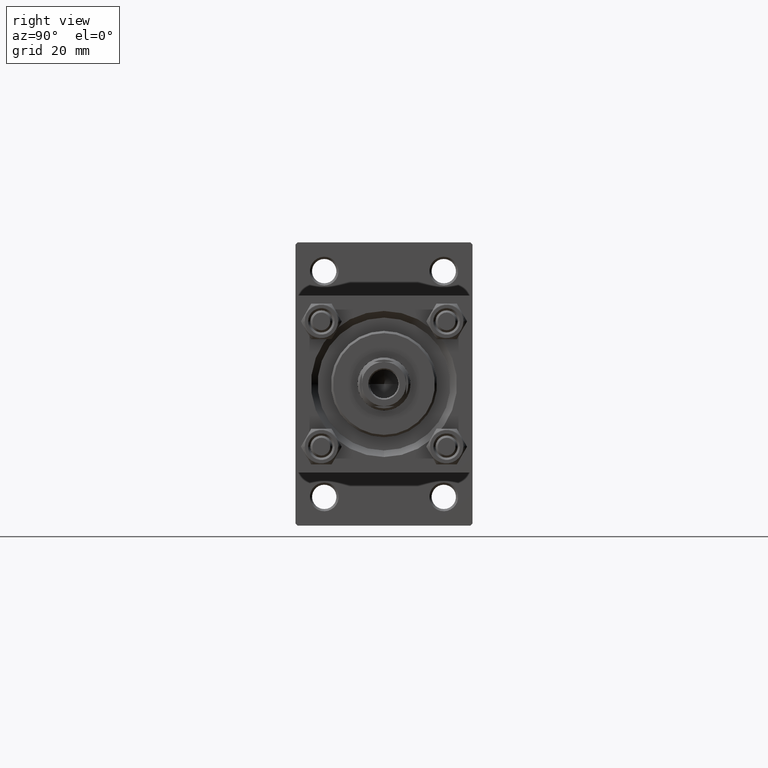
[diagram: clean part render]
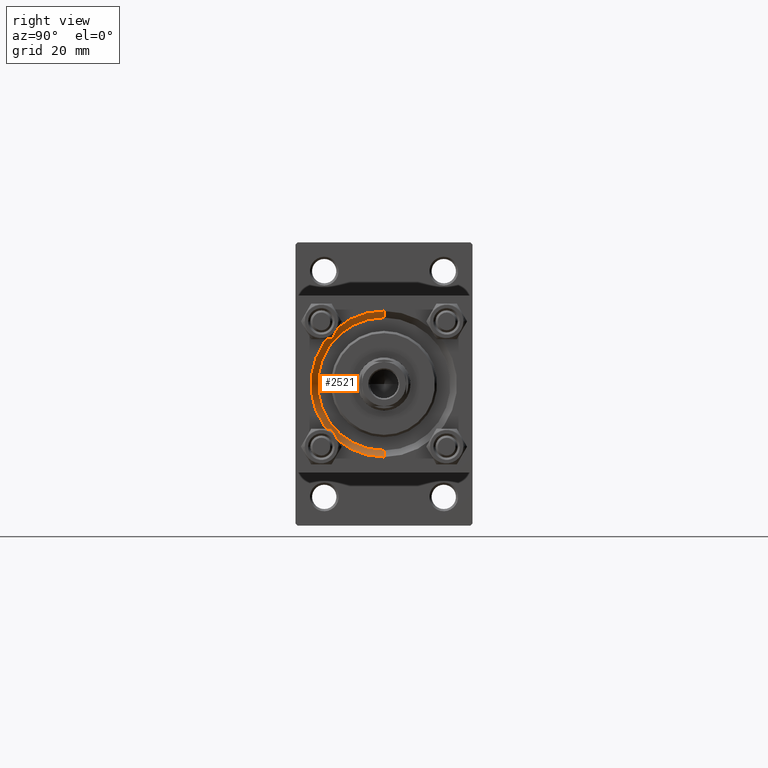
[diagram: same view with one face highlighted and labeled with its STEP entity id]
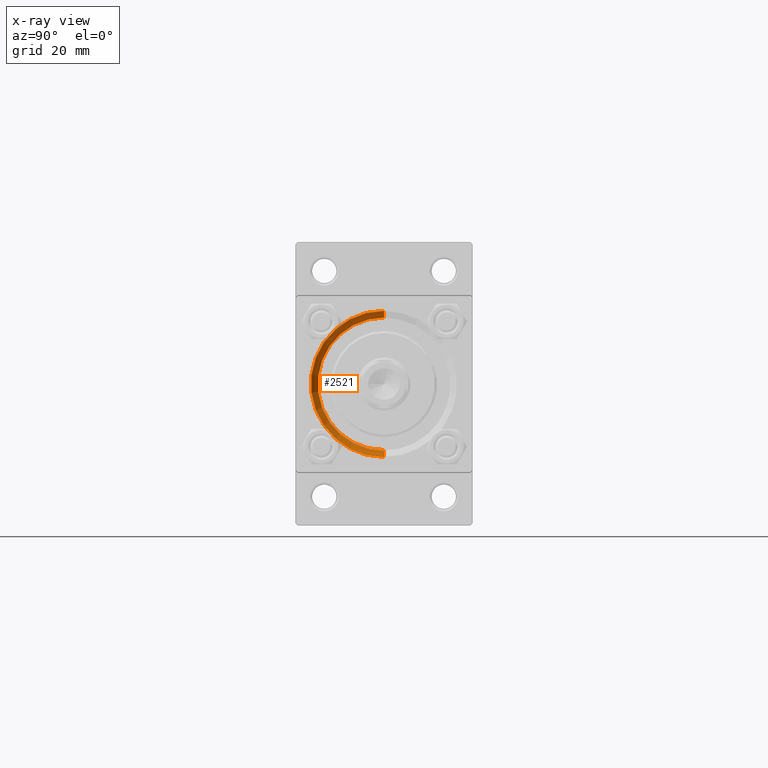
[diagram: x-ray of the same camera — body ghosted, the highlighted face saturated]
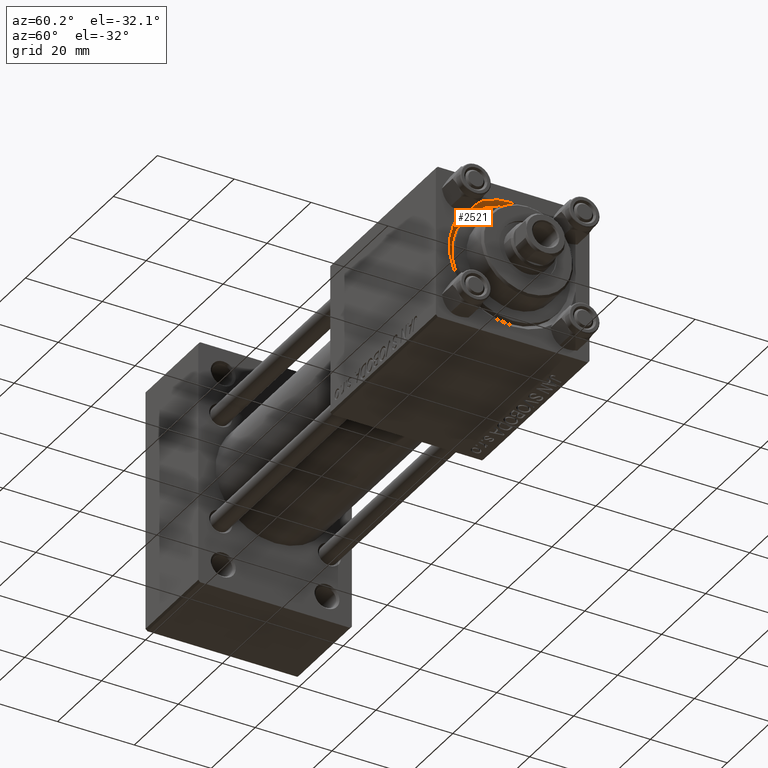
[diagram: same view with one face highlighted and labeled with its STEP entity id]
A machine part, right view. The second image highlights one B-rep face of the part: STEP entity #2521.
The next image is the same camera in x-ray: the body ghosted, the highlighted face saturated — about 0% of this face is hidden behind the body in this view.
A second angle (auxiliary view) of the same face is appended — the face is thin or edge-on in the first view.
In plain terms, the highlighted conical surface has half-angle 45 deg.
Its self-contained STEP definition (entity closure, byte-faithful):
#2207 = VECTOR ( 'NONE', #44223, 1000.000000000000114 ) ;
#2269 = AXIS2_PLACEMENT_3D ( 'NONE', #27806, #35134, #4822 ) ;
#2521 = ADVANCED_FACE ( 'NONE', ( #43252 ), #30303, .F. ) ;
#2537 = CARTESIAN_POINT ( 'NONE',  ( 130.4999999999999716, 0.000000000000000000, -15.00000000000000000 ) ) ;
#3182 = DIRECTION ( 'NONE',  ( 0.000000000000000000, 0.000000000000000000, 1.000000000000000000 ) ) ;
#3219 = EDGE_LOOP ( 'NONE', ( #8504, #42906, #34152, #34707 ) ) ;
#4115 = CIRCLE ( 'NONE', #34766, 15.00000000000000000 ) ;
#4822 = DIRECTION ( 'NONE',  ( 0.000000000000000000, 0.000000000000000000, 1.000000000000000000 ) ) ;
#5557 = CARTESIAN_POINT ( 'NONE',  ( 132.0000000000000000, 2.020667218593135861E-15, 16.50000000000002842 ) ) ;
#5905 = DIRECTION ( 'NONE',  ( 0.000000000000000000, 0.000000000000000000, -1.000000000000000000 ) ) ;
#7893 = EDGE_CURVE ( 'NONE', #23996, #41715, #43978, .T. ) ;
#8504 = ORIENTED_EDGE ( 'NONE', *, *, #19416, .F. ) ;
#9647 = VECTOR ( 'NONE', #29565, 1000.000000000000114 ) ;
#16594 = AXIS2_PLACEMENT_3D ( 'NONE', #28634, #17263, #5905 ) ;
#17263 = DIRECTION ( 'NONE',  ( 1.000000000000000000, 0.000000000000000000, 0.000000000000000000 ) ) ;
#19416 = EDGE_CURVE ( 'NONE', #23996, #42383, #4115, .T. ) ;
#21258 = LINE ( 'NONE', #2537, #9647 ) ;
#23996 = VERTEX_POINT ( 'NONE', #35991 ) ;
#24552 = CARTESIAN_POINT ( 'NONE',  ( 130.4999999999999716, 1.836970198721029589E-15, 15.00000000000000000 ) ) ;
#26175 = CARTESIAN_POINT ( 'NONE',  ( 130.4999999999999716, 0.000000000000000000, 0.000000000000000000 ) ) ;
#27772 = EDGE_CURVE ( 'NONE', #39600, #41715, #40159, .T. ) ;
#27806 = CARTESIAN_POINT ( 'NONE',  ( 132.0000000000000000, 0.000000000000000000, 0.000000000000000000 ) ) ;
#28634 = CARTESIAN_POINT ( 'NONE',  ( 130.4999999999999716, 0.000000000000000000, 0.000000000000000000 ) ) ;
#29565 = DIRECTION ( 'NONE',  ( 0.7071067811865474617, 0.000000000000000000, -0.7071067811865474617 ) ) ;
#30152 = CARTESIAN_POINT ( 'NONE',  ( 132.0000000000000000, 0.000000000000000000, -16.50000000000002842 ) ) ;
#30303 = CONICAL_SURFACE ( 'NONE', #16594, 15.00000000000000000, 0.7853981633974482790 ) ;
#34152 = ORIENTED_EDGE ( 'NONE', *, *, #27772, .F. ) ;
#34707 = ORIENTED_EDGE ( 'NONE', *, *, #34750, .F. ) ;
#34750 = EDGE_CURVE ( 'NONE', #42383, #39600, #21258, .T. ) ;
#34766 = AXIS2_PLACEMENT_3D ( 'NONE', #26175, #46341, #3182 ) ;
#35134 = DIRECTION ( 'NONE',  ( -1.000000000000000000, -0.000000000000000000, -0.000000000000000000 ) ) ;
#35616 = CARTESIAN_POINT ( 'NONE',  ( 130.4999999999999716, 0.000000000000000000, -15.00000000000000000 ) ) ;
#35991 = CARTESIAN_POINT ( 'NONE',  ( 130.4999999999999716, 1.836970198721029589E-15, 15.00000000000000000 ) ) ;
#39600 = VERTEX_POINT ( 'NONE', #30152 ) ;
#40159 = CIRCLE ( 'NONE', #2269, 16.50000000000002842 ) ;
#41715 = VERTEX_POINT ( 'NONE', #5557 ) ;
#42383 = VERTEX_POINT ( 'NONE', #35616 ) ;
#42906 = ORIENTED_EDGE ( 'NONE', *, *, #7893, .T. ) ;
#43252 = FACE_OUTER_BOUND ( 'NONE', #3219, .T. ) ;
#43978 = LINE ( 'NONE', #24552, #2207 ) ;
#44223 = DIRECTION ( 'NONE',  ( 0.7071067811865474617, 8.659560562354932858E-17, 0.7071067811865474617 ) ) ;
#46341 = DIRECTION ( 'NONE',  ( 1.000000000000000000, 0.000000000000000000, 0.000000000000000000 ) ) ;